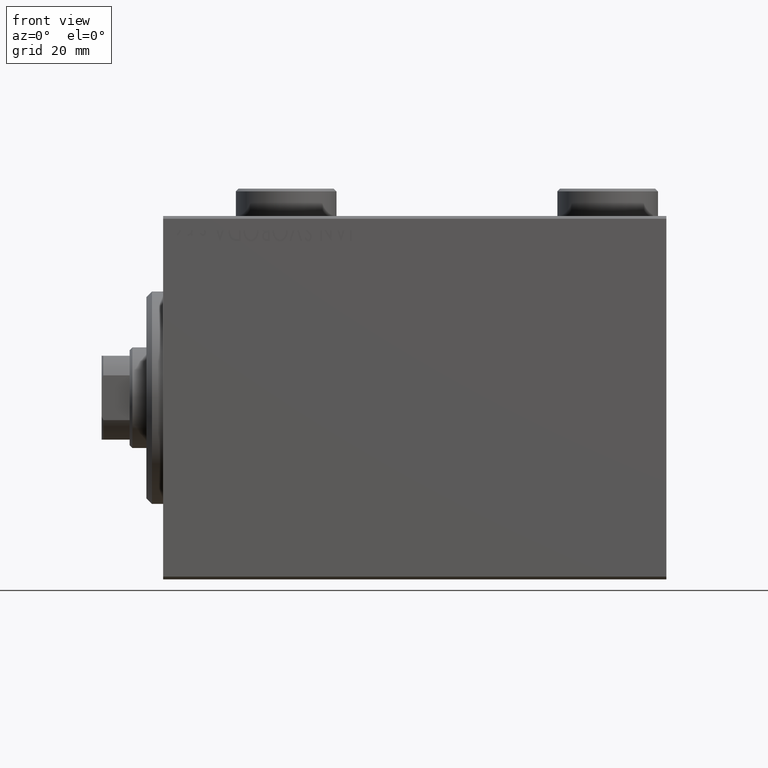
[diagram: clean part render]
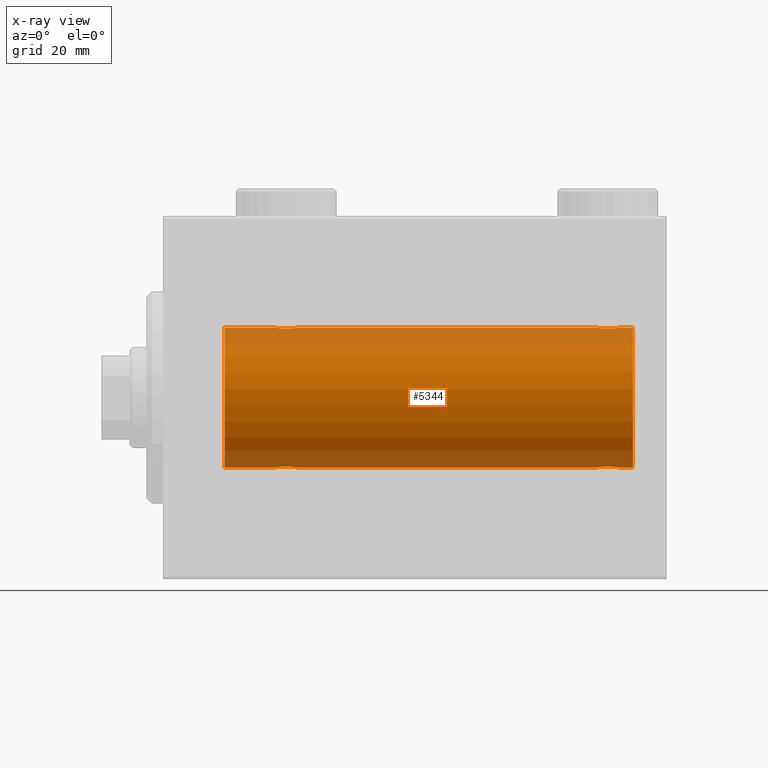
[diagram: x-ray — body ghosted, one internal face saturated and labeled with its STEP entity id]
A machine part, front view, then the same camera in x-ray: the body is ghosted and one INTERNAL B-rep face — a face not visible from any outside direction — is saturated and labeled: STEP entity #5344.
In plain terms, the highlighted cylindrical surface (partial cylindrical patch) has radius 12.5 mm, axis along (-1, -0, -0).
Its self-contained STEP definition (entity closure, byte-faithful):
#145 = CARTESIAN_POINT ( 'NONE',  ( 80.71854119541939099, -1.591305132013873580, 12.39851226212236135 ) ) ;
#1051 = CARTESIAN_POINT ( 'NONE',  ( 84.00000000000000000, 0.000000000000000000, 12.50000000000000000 ) ) ;
#1320 = ORIENTED_EDGE ( 'NONE', *, *, #24195, .T. ) ;
#2162 = VECTOR ( 'NONE', #36802, 1000.000000000000000 ) ;
#2344 = CARTESIAN_POINT ( 'NONE',  ( 22.64643896963591629, -1.897190184049187822, -12.35529285772521568 ) ) ;
#2580 = CARTESIAN_POINT ( 'NONE',  ( 20.99900207901491811, -1.736403706023272209, -12.37902502246767966 ) ) ;
#2828 = CARTESIAN_POINT ( 'NONE',  ( 81.23563078019577688, -1.002396200863553855, -12.46022444231050663 ) ) ;
#3192 = CARTESIAN_POINT ( 'NONE',  ( 24.00000000000000000, 1.530808426277417854E-15, -12.50000000000000000 ) ) ;
#3255 = CARTESIAN_POINT ( 'NONE',  ( 20.00000000000000355, -0.2646816682749811855, -12.50000000000000711 ) ) ;
#3301 = CARTESIAN_POINT ( 'NONE',  ( 19.99999999999999645, -3.210500737764230410E-15, -12.50000000000000000 ) ) ;
#3504 = CARTESIAN_POINT ( 'NONE',  ( 79.63340250451297209, -1.999916920503816087, -12.33897614545467469 ) ) ;
#3734 = CARTESIAN_POINT ( 'NONE',  ( 77.50000000000001421, -0.2646816682749899008, -12.50000000000000533 ) ) ;
#3952 = DIRECTION ( 'NONE',  ( 0.000000000000000000, 0.000000000000000000, 1.000000000000000000 ) ) ;
#3968 = CARTESIAN_POINT ( 'NONE',  ( 77.50000000000001421, -8.166091811062336699E-15, -12.50000000000000000 ) ) ;
#4251 = ORIENTED_EDGE ( 'NONE', *, *, #18925, .T. ) ;
#4449 = VECTOR ( 'NONE', #30844, 1000.000000000000000 ) ;
#4710 = FACE_OUTER_BOUND ( 'NONE', #41864, .T. ) ;
#5162 = DIRECTION ( 'NONE',  ( 0.000000000000000000, 0.000000000000000000, 1.000000000000000000 ) ) ;
#5237 = CIRCLE ( 'NONE', #17059, 12.50000000000000000 ) ;
#5344 = ADVANCED_FACE ( 'NONE', ( #4710 ), #15111, .F. ) ;
#5593 = VERTEX_POINT ( 'NONE', #33474 ) ;
#5652 = CARTESIAN_POINT ( 'NONE',  ( 10.99999999999999645, 0.000000000000000000, 0.000000000000000000 ) ) ;
#5800 = LINE ( 'NONE', #26549, #44900 ) ;
#5988 = CARTESIAN_POINT ( 'NONE',  ( 77.99277848532010182, -1.321088093821075393, 12.43033959299025426 ) ) ;
#6040 = CARTESIAN_POINT ( 'NONE',  ( 23.79785606468258763, -0.8858253204747997822, -12.46915613403961132 ) ) ;
#6116 = CARTESIAN_POINT ( 'NONE',  ( 22.13089967323422513, -2.000082296475568455, 12.33894933996982957 ) ) ;
#6182 = LINE ( 'NONE', #27385, #4449 ) ;
#6410 = CARTESIAN_POINT ( 'NONE',  ( 81.24662136620895581, -1.008535157355832990, 12.46157701909767823 ) ) ;
#6491 = CARTESIAN_POINT ( 'NONE',  ( 24.00000000000000000, -0.2612140938986740601, -12.50000000000000000 ) ) ;
#6632 = CARTESIAN_POINT ( 'NONE',  ( 80.50099792098509965, -1.736403706023266658, 12.37902502246767789 ) ) ;
#6714 = CARTESIAN_POINT ( 'NONE',  ( 21.86910032676576421, -2.000082296475566679, -12.33894933996983490 ) ) ;
#6795 = CARTESIAN_POINT ( 'NONE',  ( 20.26436921980422667, -1.002396200863560960, 12.46022444231050486 ) ) ;
#7814 = VERTEX_POINT ( 'NONE', #17633 ) ;
#7841 = CARTESIAN_POINT ( 'NONE',  ( 84.00000000000000000, 1.530808498934191127E-15, -12.50000000000000000 ) ) ;
#8627 = DIRECTION ( 'NONE',  ( -1.000000000000000000, -0.000000000000000000, -0.000000000000000000 ) ) ;
#8897 = CARTESIAN_POINT ( 'NONE',  ( 84.00000000000000000, 1.530808498934191127E-15, -12.50000000000000000 ) ) ;
#9224 = EDGE_CURVE ( 'NONE', #24550, #5593, #9374, .T. ) ;
#9267 = CARTESIAN_POINT ( 'NONE',  ( 19.99999999999999645, -3.210500737764230410E-15, -12.50000000000000000 ) ) ;
#9282 = VERTEX_POINT ( 'NONE', #44889 ) ;
#9349 = CARTESIAN_POINT ( 'NONE',  ( 20.77972850102579727, -1.589951752150277731, 12.39868561261689273 ) ) ;
#9374 = B_SPLINE_CURVE_WITH_KNOTS ( 'NONE', 3,
 ( #30183, #16371, #30416, #44460, #23514, #37565, #5988, #44693, #41244, #22595, #36659, #23935, #13778, #45115, #41664, #41443, #21166, #31071, #27844, #13557, #6632, #145, #9874, #31748, #6410, #10322, #27615, #10101 ),
 .UNSPECIFIED., .F., .F.,
 ( 4, 2, 2, 2, 2, 2, 2, 2, 2, 2, 2, 2, 2, 4 ),
 ( 0.006262980370572151546, 0.007045658964677331722, 0.007436998261729929616, 0.007828337558782528377, 0.008219676855835125404, 0.008611016152887724165, 0.009002355449940321191, 0.009393694746992919953, 0.009785034044045518714, 0.01017637334109811748, 0.01056771263815071624, 0.01095905193520331326, 0.01174173052930853854, 0.01252440912341376555 ),
 .UNSPECIFIED. ) ;
#9726 = CARTESIAN_POINT ( 'NONE',  ( 23.58981090228289546, -1.220538259806346781, -12.44075068685996932 ) ) ;
#9805 = CARTESIAN_POINT ( 'NONE',  ( 23.21854119541938033, -1.591305132013879131, 12.39851226212236135 ) ) ;
#9874 = CARTESIAN_POINT ( 'NONE',  ( 80.82116712851446039, -1.507135374967687458, 12.40915432986586886 ) ) ;
#9955 = CARTESIAN_POINT ( 'NONE',  ( 22.51961472357873717, -1.935716533151641716, -12.34923763528284901 ) ) ;
#9986 = CARTESIAN_POINT ( 'NONE',  ( 80.82299943107736340, -1.505544071529933303, -12.40934942683853848 ) ) ;
#10101 = CARTESIAN_POINT ( 'NONE',  ( 81.50000000000001421, 3.163483401492493339E-15, 12.50000000000000000 ) ) ;
#10187 = CARTESIAN_POINT ( 'NONE',  ( 22.26391373102435622, -1.986793270638196551, -12.34112317291865146 ) ) ;
#10276 = EDGE_CURVE ( 'NONE', #16329, #9282, #22515, .T. ) ;
#10322 = CARTESIAN_POINT ( 'NONE',  ( 81.44665679898380972, -0.5275951738695604520, 12.49118442338578383 ) ) ;
#10431 = CARTESIAN_POINT ( 'NONE',  ( 78.61383846120568819, -1.797736511708065255, -12.37015393445320655 ) ) ;
#10932 = CARTESIAN_POINT ( 'NONE',  ( 23.94665679898380972, -0.5275951738695672244, 12.49118442338578383 ) ) ;
#11112 = CARTESIAN_POINT ( 'NONE',  ( 77.75337863379110104, -1.008535157355852085, -12.46157701909767646 ) ) ;
#11241 = B_SPLINE_CURVE_WITH_KNOTS ( 'NONE', 3,
 ( #27471, #6491, #45424, #6040, #41528, #9726, #12963, #27018, #30709, #34174, #24238, #2344, #9955, #10187, #20572, #6714, #34620, #38297, #45201, #26787, #2580, #17114, #30478, #31155, #44747, #13184, #3255, #9267 ),
 .UNSPECIFIED., .F., .F.,
 ( 4, 2, 2, 2, 2, 2, 2, 2, 2, 2, 2, 2, 2, 4 ),
 ( 0.006262980370572175833, 0.007045658964677372488, 0.007436998261729972984, 0.007828337558782573480, 0.008219676855835173976, 0.008611016152887774472, 0.009002355449940374968, 0.009393694746992975464, 0.009785034044045574225, 0.01017637334109817646, 0.01056771263815077522, 0.01095905193520337745, 0.01174173052930858538, 0.01252440912341379331 ),
 .UNSPECIFIED. ) ;
#11548 = VERTEX_POINT ( 'NONE', #3301 ) ;
#11634 = ORIENTED_EDGE ( 'NONE', *, *, #45317, .T. ) ;
#11756 = EDGE_CURVE ( 'NONE', #31981, #5593, #5800, .T. ) ;
#12093 = CARTESIAN_POINT ( 'NONE',  ( 84.00000000000000000, 0.000000000000000000, 0.000000000000000000 ) ) ;
#12454 = ORIENTED_EDGE ( 'NONE', *, *, #10276, .T. ) ;
#12810 = CARTESIAN_POINT ( 'NONE',  ( 20.41018909771709744, -1.220538259806349446, 12.44075068685996932 ) ) ;
#12963 = CARTESIAN_POINT ( 'NONE',  ( 23.50722151467993015, -1.321088093821078502, -12.43033959299024893 ) ) ;
#13062 = CARTESIAN_POINT ( 'NONE',  ( 84.00000000000000000, 0.000000000000000000, 0.000000000000000000 ) ) ;
#13184 = CARTESIAN_POINT ( 'NONE',  ( 20.05334320101619738, -0.5275951738695667803, -12.49118442338578383 ) ) ;
#13214 = CARTESIAN_POINT ( 'NONE',  ( 81.50000000000002842, -0.2612140938986732275, -12.50000000000000178 ) ) ;
#13265 = CARTESIAN_POINT ( 'NONE',  ( 23.00099792098507834, -1.736403706023272875, 12.37902502246767789 ) ) ;
#13437 = CARTESIAN_POINT ( 'NONE',  ( 81.08981090228292032, -1.220538259806343451, -12.44075068685996932 ) ) ;
#13557 = CARTESIAN_POINT ( 'NONE',  ( 80.38616153879435444, -1.797736511708053264, 12.37015393445321010 ) ) ;
#13778 = CARTESIAN_POINT ( 'NONE',  ( 78.98038527642127349, -1.935716533151639718, 12.34923763528284368 ) ) ;
#14115 = CARTESIAN_POINT ( 'NONE',  ( 80.14643896963593761, -1.897190184049181827, -12.35529285772521568 ) ) ;
#14349 = CARTESIAN_POINT ( 'NONE',  ( 77.90255225308979448, -1.231226695485375444, -12.44059298055988094 ) ) ;
#14855 = CARTESIAN_POINT ( 'NONE',  ( 24.00000000000000000, -4.087457046134890896E-16, 12.50000000000000000 ) ) ;
#15111 = CYLINDRICAL_SURFACE ( 'NONE', #30007, 12.50000000000000000 ) ;
#15733 = CARTESIAN_POINT ( 'NONE',  ( 10.99999999999999645, 0.000000000000000000, 12.50000000000000000 ) ) ;
#16320 = EDGE_CURVE ( 'NONE', #17033, #45036, #26857, .T. ) ;
#16329 = VERTEX_POINT ( 'NONE', #24541 ) ;
#16371 = CARTESIAN_POINT ( 'NONE',  ( 77.50000000000000000, -0.2612140938986747818, 12.50000000000000000 ) ) ;
#16736 = CARTESIAN_POINT ( 'NONE',  ( 21.35356103036408371, -1.897190184049189376, 12.35529285772521391 ) ) ;
#16880 = EDGE_CURVE ( 'NONE', #24550, #45036, #6182, .T. ) ;
#17033 = VERTEX_POINT ( 'NONE', #35668 ) ;
#17059 = AXIS2_PLACEMENT_3D ( 'NONE', #5652, #38310, #3952 ) ;
#17114 = CARTESIAN_POINT ( 'NONE',  ( 20.78145880458061256, -1.591305132013879797, -12.39851226212235957 ) ) ;
#17194 = CARTESIAN_POINT ( 'NONE',  ( 21.48038527642125928, -1.935716533151643937, 12.34923763528284546 ) ) ;
#17412 = CARTESIAN_POINT ( 'NONE',  ( 20.99654425923309020, -1.734959850168413364, 12.37922718965051061 ) ) ;
#17633 = CARTESIAN_POINT ( 'NONE',  ( 77.50000000000001421, -8.166091811062336699E-15, -12.50000000000000000 ) ) ;
#18045 = CARTESIAN_POINT ( 'NONE',  ( 79.76391373102435978, -1.986793270638195663, -12.34112317291865146 ) ) ;
#18196 = LINE ( 'NONE', #42833, #21626 ) ;
#18658 = VECTOR ( 'NONE', #21909, 1000.000000000000000 ) ;
#18925 = EDGE_CURVE ( 'NONE', #22612, #41662, #5237, .T. ) ;
#20151 = CARTESIAN_POINT ( 'NONE',  ( 81.50000000000001421, 1.530808426270318106E-15, -12.50000000000000000 ) ) ;
#20199 = CARTESIAN_POINT ( 'NONE',  ( 20.05255659427669812, -0.5247436444070338046, 12.49130933415156441 ) ) ;
#20430 = CARTESIAN_POINT ( 'NONE',  ( 21.86659749548704568, -1.999916920503819862, 12.33897614545467469 ) ) ;
#20572 = CARTESIAN_POINT ( 'NONE',  ( 22.13340250451295432, -1.999916920503817197, -12.33897614545467647 ) ) ;
#20651 = CARTESIAN_POINT ( 'NONE',  ( 19.99999999999999289, -0.2612140938986758365, 12.50000000000000178 ) ) ;
#21166 = CARTESIAN_POINT ( 'NONE',  ( 79.76093497285606304, -1.987194304939074341, 12.34105826212746138 ) ) ;
#21234 = LINE ( 'NONE', #7841, #18658 ) ;
#21275 = CARTESIAN_POINT ( 'NONE',  ( 80.50345574076695243, -1.734959850168409368, -12.37922718965050706 ) ) ;
#21322 = CARTESIAN_POINT ( 'NONE',  ( 23.59744774691023039, -1.231226695485370115, 12.44059298055988272 ) ) ;
#21427 = ORIENTED_EDGE ( 'NONE', *, *, #36547, .F. ) ;
#21626 = VECTOR ( 'NONE', #38698, 1000.000000000000000 ) ;
#21909 = DIRECTION ( 'NONE',  ( -1.000000000000000000, -0.000000000000000000, -0.000000000000000000 ) ) ;
#22515 = LINE ( 'NONE', #8897, #2162 ) ;
#22595 = CARTESIAN_POINT ( 'NONE',  ( 78.49654425923311862, -1.734959850168412254, 12.37922718965051061 ) ) ;
#22612 = VERTEX_POINT ( 'NONE', #31682 ) ;
#23436 = DIRECTION ( 'NONE',  ( -1.000000000000000000, 0.000000000000000000, 0.000000000000000000 ) ) ;
#23514 = CARTESIAN_POINT ( 'NONE',  ( 77.76436921980425154, -1.002396200863564291, 12.46022444231050663 ) ) ;
#23643 = CARTESIAN_POINT ( 'NONE',  ( 19.99999999999999645, -7.265724481447607133E-23, 12.50000000000000000 ) ) ;
#23935 = CARTESIAN_POINT ( 'NONE',  ( 78.85356103036409081, -1.897190184049181161, 12.35529285772521213 ) ) ;
#24046 = CARTESIAN_POINT ( 'NONE',  ( 80.72027149897419918, -1.589951752150273512, -12.39868561261689095 ) ) ;
#24195 = EDGE_CURVE ( 'NONE', #7814, #25163, #21234, .T. ) ;
#24238 = CARTESIAN_POINT ( 'NONE',  ( 22.88874725797040099, -1.796480516834687569, -12.37033750336835602 ) ) ;
#24541 = CARTESIAN_POINT ( 'NONE',  ( 84.00000000000000000, 1.530808498934191127E-15, -12.50000000000000000 ) ) ;
#24550 = VERTEX_POINT ( 'NONE', #44386 ) ;
#24721 = CARTESIAN_POINT ( 'NONE',  ( 78.98306273302372915, -1.936441098420709439, -12.34912369794528608 ) ) ;
#24944 = CARTESIAN_POINT ( 'NONE',  ( 79.23906502714395117, -1.987194304939079004, -12.34105826212746138 ) ) ;
#25163 = VERTEX_POINT ( 'NONE', #3192 ) ;
#25174 = CARTESIAN_POINT ( 'NONE',  ( 78.49900207901494298, -1.736403706023271987, -12.37902502246767966 ) ) ;
#25405 = EDGE_CURVE ( 'NONE', #17033, #41662, #18196, .T. ) ;
#25838 = CARTESIAN_POINT ( 'NONE',  ( 23.74662136620892738, -1.008535157355842093, 12.46157701909767823 ) ) ;
#26549 = CARTESIAN_POINT ( 'NONE',  ( 84.00000000000000000, 0.000000000000000000, 12.50000000000000000 ) ) ;
#26787 = CARTESIAN_POINT ( 'NONE',  ( 21.11383846120565977, -1.797736511708061924, -12.37015393445320299 ) ) ;
#26857 = B_SPLINE_CURVE_WITH_KNOTS ( 'NONE', 3,
 ( #23643, #20651, #20199, #37693, #6795, #12810, #44827, #34694, #9349, #17412, #27322, #16736, #17194, #31235, #20430, #6116, #45275, #41824, #34920, #26868, #13265, #9805, #40923, #21322, #25838, #10932, #38823, #28003 ),
 .UNSPECIFIED., .F., .F.,
 ( 4, 2, 2, 2, 2, 2, 2, 2, 2, 2, 2, 2, 2, 4 ),
 ( 0.006262980370572172363, 0.007045658964677369886, 0.007436998261729971249, 0.007828337558782571745, 0.008219676855835172241, 0.008611016152887774472, 0.009002355449940374968, 0.009393694746992975464, 0.009785034044045575960, 0.01017637334109817646, 0.01056771263815077869, 0.01095905193520337918, 0.01174173052930858711, 0.01252440912341379678 ),
 .UNSPECIFIED. ) ;
#26868 = CARTESIAN_POINT ( 'NONE',  ( 22.88616153879432957, -1.797736511708064144, 12.37015393445321010 ) ) ;
#26922 = LINE ( 'NONE', #30837, #42275 ) ;
#27018 = CARTESIAN_POINT ( 'NONE',  ( 23.32299943107732787, -1.505544071529934635, -12.40934942683854025 ) ) ;
#27273 = CARTESIAN_POINT ( 'NONE',  ( 81.29785606468260539, -0.8858253204747982279, -12.46915613403961309 ) ) ;
#27322 = CARTESIAN_POINT ( 'NONE',  ( 21.11125274202960256, -1.796480516834690011, 12.37033750336835780 ) ) ;
#27385 = CARTESIAN_POINT ( 'NONE',  ( 84.00000000000000000, 0.000000000000000000, 12.50000000000000000 ) ) ;
#27471 = CARTESIAN_POINT ( 'NONE',  ( 24.00000000000000000, 1.530808426277417854E-15, -12.50000000000000000 ) ) ;
#27502 = CARTESIAN_POINT ( 'NONE',  ( 81.44744340572329122, -0.5247436444070302519, -12.49130933415156797 ) ) ;
#27615 = CARTESIAN_POINT ( 'NONE',  ( 81.50000000000000000, -0.2646816682749794647, 12.50000000000000000 ) ) ;
#27844 = CARTESIAN_POINT ( 'NONE',  ( 80.14425278797729391, -1.897913903092038890, 12.35518060345724933 ) ) ;
#28003 = CARTESIAN_POINT ( 'NONE',  ( 24.00000000000000000, -4.087457046134890896E-16, 12.50000000000000000 ) ) ;
#28177 = CARTESIAN_POINT ( 'NONE',  ( 78.17883287148559646, -1.507135374967704999, -12.40915432986586708 ) ) ;
#28405 = CARTESIAN_POINT ( 'NONE',  ( 80.01961472357875493, -1.935716533151641716, -12.34923763528285079 ) ) ;
#29238 = B_SPLINE_CURVE_WITH_KNOTS ( 'NONE', 3,
 ( #20151, #13214, #27502, #27273, #2828, #13437, #41557, #9986, #24046, #21275, #42680, #14115, #28405, #18045, #3504, #38324, #24944, #24721, #41775, #10431, #25174, #41997, #28177, #14349, #11112, #38776, #3734, #3968 ),
 .UNSPECIFIED., .F., .F.,
 ( 4, 2, 2, 2, 2, 2, 2, 2, 2, 2, 2, 2, 2, 4 ),
 ( 0.006262980370572167159, 0.007045658964677356875, 0.007436998261729959973, 0.007828337558782563071, 0.008219676855835165302, 0.008611016152887767533, 0.009002355449940371498, 0.009393694746992973729, 0.009785034044045575960, 0.01017637334109817993, 0.01056771263815078216, 0.01095905193520338439, 0.01174173052930859058, 0.01252440912341379504 ),
 .UNSPECIFIED. ) ;
#30007 = AXIS2_PLACEMENT_3D ( 'NONE', #12093, #8627, #5162 ) ;
#30183 = CARTESIAN_POINT ( 'NONE',  ( 77.50000000000001421, -7.266434456262306043E-23, 12.50000000000000000 ) ) ;
#30416 = CARTESIAN_POINT ( 'NONE',  ( 77.55255659427670878, -0.5247436444070334716, 12.49130933415156441 ) ) ;
#30478 = CARTESIAN_POINT ( 'NONE',  ( 20.67883287148555382, -1.507135374967701225, -12.40915432986587064 ) ) ;
#30661 = ORIENTED_EDGE ( 'NONE', *, *, #16880, .F. ) ;
#30709 = CARTESIAN_POINT ( 'NONE',  ( 23.22027149897420628, -1.589951752150275510, -12.39868561261689273 ) ) ;
#30806 = DIRECTION ( 'NONE',  ( 0.000000000000000000, 0.000000000000000000, 1.000000000000000000 ) ) ;
#30837 = CARTESIAN_POINT ( 'NONE',  ( 84.00000000000000000, 1.530808498934191127E-15, -12.50000000000000000 ) ) ;
#30844 = DIRECTION ( 'NONE',  ( -1.000000000000000000, -0.000000000000000000, -0.000000000000000000 ) ) ;
#31071 = CARTESIAN_POINT ( 'NONE',  ( 80.01693726697629927, -1.936441098420705220, 12.34912369794528786 ) ) ;
#31116 = ORIENTED_EDGE ( 'NONE', *, *, #25405, .F. ) ;
#31155 = CARTESIAN_POINT ( 'NONE',  ( 20.40255225308977316, -1.231226695485371891, -12.44059298055988450 ) ) ;
#31235 = CARTESIAN_POINT ( 'NONE',  ( 21.73608626897565088, -1.986793270638199438, 12.34112317291865146 ) ) ;
#31682 = CARTESIAN_POINT ( 'NONE',  ( 10.99999999999999645, 1.530808498934191127E-15, -12.50000000000000000 ) ) ;
#31748 = CARTESIAN_POINT ( 'NONE',  ( 81.09744774691024816, -1.231226695485355904, 12.44059298055988094 ) ) ;
#31981 = VERTEX_POINT ( 'NONE', #1051 ) ;
#33474 = CARTESIAN_POINT ( 'NONE',  ( 81.50000000000001421, 3.163483401492493339E-15, 12.50000000000000000 ) ) ;
#34174 = CARTESIAN_POINT ( 'NONE',  ( 23.00345574076691335, -1.734959850168410700, -12.37922718965050528 ) ) ;
#34434 = ORIENTED_EDGE ( 'NONE', *, *, #41940, .T. ) ;
#34620 = CARTESIAN_POINT ( 'NONE',  ( 21.73906502714393341, -1.987194304939077671, -12.34105826212746138 ) ) ;
#34694 = CARTESIAN_POINT ( 'NONE',  ( 20.67700056892266858, -1.505544071529937078, 12.40934942683854025 ) ) ;
#34920 = CARTESIAN_POINT ( 'NONE',  ( 22.64425278797729746, -1.897913903092048882, 12.35518060345724933 ) ) ;
#35668 = CARTESIAN_POINT ( 'NONE',  ( 19.99999999999999645, -7.265724481447607133E-23, 12.50000000000000000 ) ) ;
#36547 = EDGE_CURVE ( 'NONE', #16329, #31981, #43010, .T. ) ;
#36596 = ORIENTED_EDGE ( 'NONE', *, *, #11756, .F. ) ;
#36659 = CARTESIAN_POINT ( 'NONE',  ( 78.61125274202963453, -1.796480516834681573, 12.37033750336835958 ) ) ;
#36802 = DIRECTION ( 'NONE',  ( -1.000000000000000000, -0.000000000000000000, -0.000000000000000000 ) ) ;
#36907 = ORIENTED_EDGE ( 'NONE', *, *, #41745, .T. ) ;
#37565 = CARTESIAN_POINT ( 'NONE',  ( 77.91018909771712231, -1.220538259806350778, 12.44075068685996754 ) ) ;
#37693 = CARTESIAN_POINT ( 'NONE',  ( 20.20214393531741237, -0.8858253204748016696, 12.46915613403960776 ) ) ;
#38297 = CARTESIAN_POINT ( 'NONE',  ( 21.48306273302371494, -1.936441098420706997, -12.34912369794528608 ) ) ;
#38310 = DIRECTION ( 'NONE',  ( -1.000000000000000000, 0.000000000000000000, 0.000000000000000000 ) ) ;
#38324 = CARTESIAN_POINT ( 'NONE',  ( 79.36910032676581750, -2.000082296475568455, -12.33894933996983845 ) ) ;
#38698 = DIRECTION ( 'NONE',  ( -1.000000000000000000, -0.000000000000000000, -0.000000000000000000 ) ) ;
#38776 = CARTESIAN_POINT ( 'NONE',  ( 77.55334320101624712, -0.5275951738695781046, -12.49118442338578738 ) ) ;
#38823 = CARTESIAN_POINT ( 'NONE',  ( 24.00000000000000000, -0.2646816682749789651, 12.50000000000000000 ) ) ;
#40149 = DIRECTION ( 'NONE',  ( -1.000000000000000000, -0.000000000000000000, -0.000000000000000000 ) ) ;
#40923 = CARTESIAN_POINT ( 'NONE',  ( 23.32116712851443552, -1.507135374967700336, 12.40915432986586531 ) ) ;
#41118 = ORIENTED_EDGE ( 'NONE', *, *, #9224, .T. ) ;
#41244 = CARTESIAN_POINT ( 'NONE',  ( 78.27972850102582925, -1.589951752150278397, 12.39868561261688740 ) ) ;
#41443 = CARTESIAN_POINT ( 'NONE',  ( 79.63089967323422513, -2.000082296475560906, 12.33894933996983490 ) ) ;
#41528 = CARTESIAN_POINT ( 'NONE',  ( 23.73563078019576977, -1.002396200863559406, -12.46022444231050841 ) ) ;
#41557 = CARTESIAN_POINT ( 'NONE',  ( 81.00722151467996923, -1.321088093821075837, -12.43033959299025426 ) ) ;
#41662 = VERTEX_POINT ( 'NONE', #15733 ) ;
#41664 = CARTESIAN_POINT ( 'NONE',  ( 79.36659749548705634, -1.999916920503812534, 12.33897614545467647 ) ) ;
#41745 = EDGE_CURVE ( 'NONE', #25163, #11548, #11241, .T. ) ;
#41775 = CARTESIAN_POINT ( 'NONE',  ( 78.85574721202272030, -1.897913903092048660, -12.35518060345725111 ) ) ;
#41824 = CARTESIAN_POINT ( 'NONE',  ( 22.51693726697628861, -1.936441098420708773, 12.34912369794528786 ) ) ;
#41864 = EDGE_LOOP ( 'NONE', ( #21427, #12454, #11634, #1320, #36907, #34434, #4251, #31116, #44720, #30661, #41118, #36596 ) ) ;
#41940 = EDGE_CURVE ( 'NONE', #11548, #22612, #26922, .T. ) ;
#41997 = CARTESIAN_POINT ( 'NONE',  ( 78.28145880458063743, -1.591305132013879353, -12.39851226212236313 ) ) ;
#42275 = VECTOR ( 'NONE', #45106, 1000.000000000000000 ) ;
#42680 = CARTESIAN_POINT ( 'NONE',  ( 80.38874725797045073, -1.796480516834679797, -12.37033750336835780 ) ) ;
#42833 = CARTESIAN_POINT ( 'NONE',  ( 84.00000000000000000, 0.000000000000000000, 12.50000000000000000 ) ) ;
#43010 = CIRCLE ( 'NONE', #45206, 12.50000000000000000 ) ;
#44386 = CARTESIAN_POINT ( 'NONE',  ( 77.50000000000001421, -7.266434456262306043E-23, 12.50000000000000000 ) ) ;
#44460 = CARTESIAN_POINT ( 'NONE',  ( 77.70214393531740882, -0.8858253204748003373, 12.46915613403960421 ) ) ;
#44693 = CARTESIAN_POINT ( 'NONE',  ( 78.17700056892267924, -1.505544071529930639, 12.40934942683854025 ) ) ;
#44720 = ORIENTED_EDGE ( 'NONE', *, *, #16320, .T. ) ;
#44747 = CARTESIAN_POINT ( 'NONE',  ( 20.25337863379106906, -1.008535157355841427, -12.46157701909767823 ) ) ;
#44827 = CARTESIAN_POINT ( 'NONE',  ( 20.49277848532006630, -1.321088093821079390, 12.43033959299025426 ) ) ;
#44889 = CARTESIAN_POINT ( 'NONE',  ( 81.50000000000001421, 1.530808426270318106E-15, -12.50000000000000000 ) ) ;
#44900 = VECTOR ( 'NONE', #40149, 1000.000000000000000 ) ;
#45036 = VERTEX_POINT ( 'NONE', #14855 ) ;
#45106 = DIRECTION ( 'NONE',  ( -1.000000000000000000, -0.000000000000000000, -0.000000000000000000 ) ) ;
#45115 = CARTESIAN_POINT ( 'NONE',  ( 79.23608626897569707, -1.986793270638193443, 12.34112317291865146 ) ) ;
#45201 = CARTESIAN_POINT ( 'NONE',  ( 21.35574721202270254, -1.897913903092047327, -12.35518060345725289 ) ) ;
#45206 = AXIS2_PLACEMENT_3D ( 'NONE', #13062, #23436, #30806 ) ;
#45275 = CARTESIAN_POINT ( 'NONE',  ( 22.26093497285607370, -1.987194304939079448, 12.34105826212746315 ) ) ;
#45317 = EDGE_CURVE ( 'NONE', #9282, #7814, #29238, .T. ) ;
#45424 = CARTESIAN_POINT ( 'NONE',  ( 23.94744340572330543, -0.5247436444070322503, -12.49130933415156974 ) ) ;